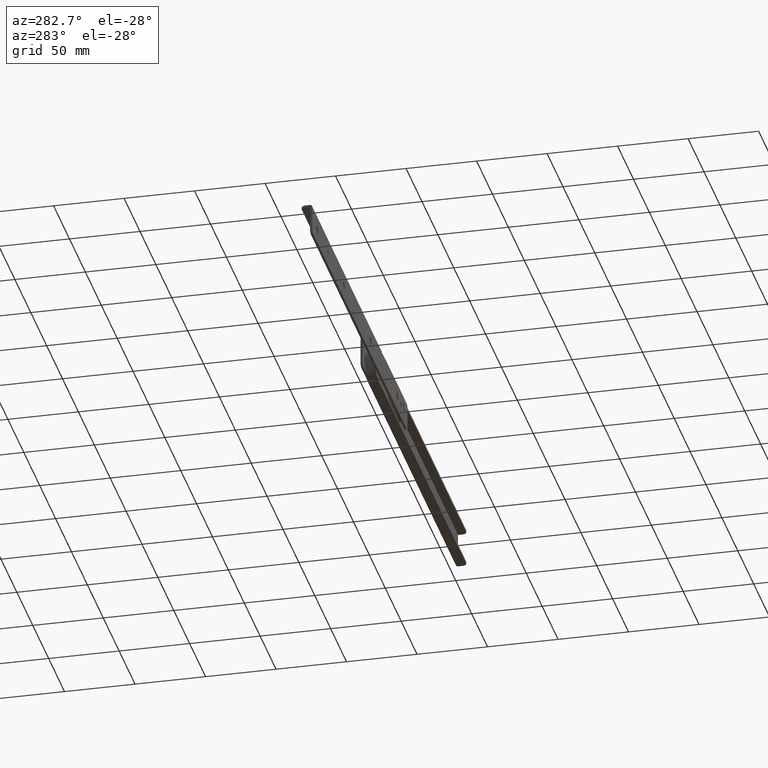
[diagram: clean part render]
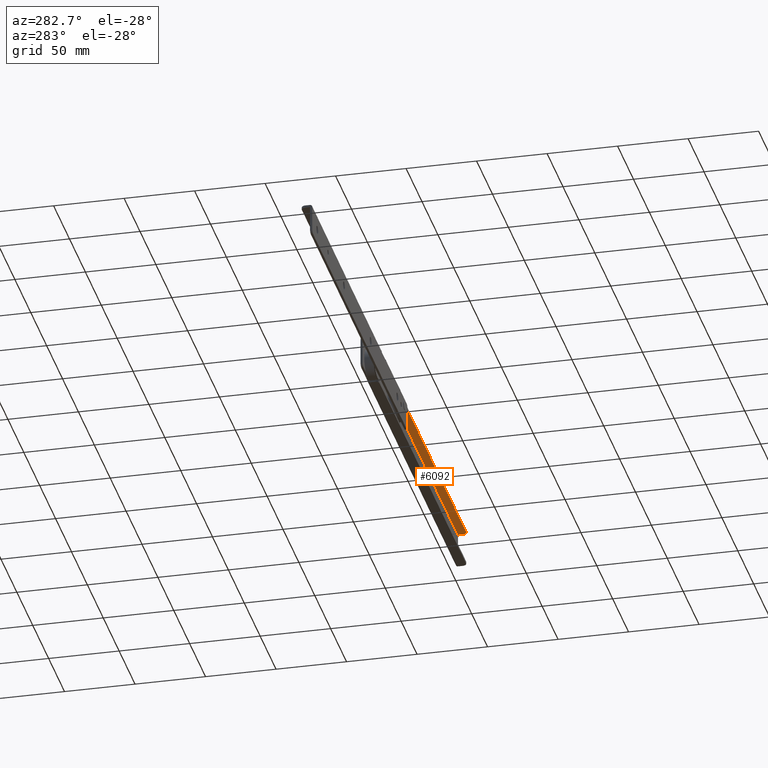
[diagram: same view with one face highlighted and labeled with its STEP entity id]
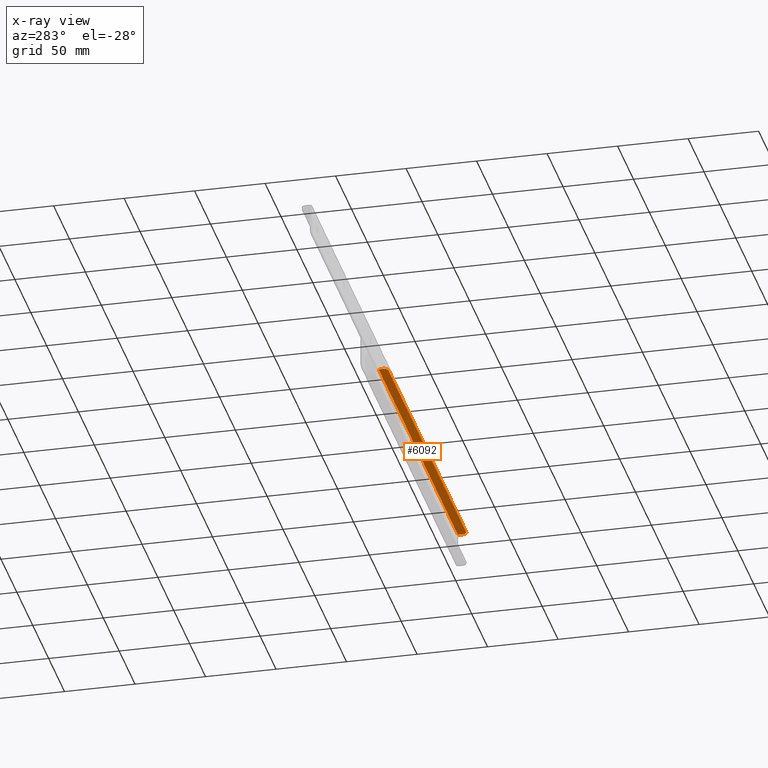
[diagram: x-ray of the same camera — body ghosted, the highlighted face saturated]
A machine part, auxiliary view. The second image highlights one B-rep face of the part: STEP entity #6092.
The next image is the same camera in x-ray: the body ghosted, the highlighted face saturated — about 1% of this face is hidden behind the body in this view.
In plain terms, the highlighted face is a freeform B-spline surface patch.
Its self-contained STEP definition (entity closure, byte-faithful):
#5284=CARTESIAN_POINT('',(50.0,-5.0,4.400000000000205));
#5285=VERTEX_POINT('',#5284);
#5291=CARTESIAN_POINT('',(53.0,-8.0,4.400000000000205));
#5292=VERTEX_POINT('',#5291);
#5293=CARTESIAN_POINT('',(53.0,-8.0,4.400000000000205));
#5294=CARTESIAN_POINT('',(49.999999999999986,-8.0,4.400000000000205));
#5295=CARTESIAN_POINT('',(49.999999999999993,-5.0,4.400000000000205));
#5303=(BOUNDED_CURVE()B_SPLINE_CURVE(2,(#5293,#5294,#5295),.UNSPECIFIED.,.F.,.U.)CURVE()GEOMETRIC_REPRESENTATION_ITEM()QUASI_UNIFORM_CURVE()RATIONAL_B_SPLINE_CURVE((1.0,0.707106781186548,1.0))REPRESENTATION_ITEM(''));
#5304=EDGE_CURVE('',#5292,#5285,#5303,.T.);
#5467=CARTESIAN_POINT('',(297.0,-8.0,4.400000000000205));
#5468=VERTEX_POINT('',#5467);
#5474=CARTESIAN_POINT('',(300.0,-5.0,4.400000000000205));
#5475=VERTEX_POINT('',#5474);
#5476=CARTESIAN_POINT('',(300.0,-5.0,4.400000000000205));
#5477=CARTESIAN_POINT('',(300.000000000000060,-8.0,4.400000000000205));
#5478=CARTESIAN_POINT('',(297.0,-8.0,4.400000000000205));
#5486=(BOUNDED_CURVE()B_SPLINE_CURVE(2,(#5476,#5477,#5478),.UNSPECIFIED.,.F.,.U.)CURVE()GEOMETRIC_REPRESENTATION_ITEM()QUASI_UNIFORM_CURVE()RATIONAL_B_SPLINE_CURVE((1.0,0.707106781186548,1.0))REPRESENTATION_ITEM(''));
#5487=EDGE_CURVE('',#5475,#5468,#5486,.T.);
#5634=CARTESIAN_POINT('',(50.0,-1.599999999999935,4.400000000000205));
#5635=VERTEX_POINT('',#5634);
#5654=CARTESIAN_POINT('',(50.0,-1.599999999999935,4.400000000000205));
#5655=CARTESIAN_POINT('',(50.0,-5.0,4.400000000000205));
#5656=QUASI_UNIFORM_CURVE('',1,(#5654,#5655),.UNSPECIFIED.,.F.,.U.);
#5657=EDGE_CURVE('',#5635,#5285,#5656,.T.);
#5780=CARTESIAN_POINT('',(300.0,-1.599999999999910,4.400000000000205));
#5781=VERTEX_POINT('',#5780);
#5782=CARTESIAN_POINT('',(300.0,-5.0,4.400000000000205));
#5783=CARTESIAN_POINT('',(300.0,-1.599999999999910,4.400000000000205));
#5784=QUASI_UNIFORM_CURVE('',1,(#5782,#5783),.UNSPECIFIED.,.F.,.U.);
#5785=EDGE_CURVE('',#5475,#5781,#5784,.T.);
#6023=CARTESIAN_POINT('',(300.0,-1.599999999999910,4.400000000000205));
#6024=CARTESIAN_POINT('',(50.0,-1.599999999999935,4.400000000000205));
#6025=QUASI_UNIFORM_CURVE('',1,(#6023,#6024),.UNSPECIFIED.,.F.,.U.);
#6026=EDGE_CURVE('',#5781,#5635,#6025,.T.);
#6075=CARTESIAN_POINT('',(37.512500484548497,-1.280320012404347,4.400000000000205));
#6076=CARTESIAN_POINT('',(37.512500484548497,-8.319680159256938,4.400000000000205));
#6077=CARTESIAN_POINT('',(312.487506220974130,-1.280320012404347,4.400000000000205));
#6078=CARTESIAN_POINT('',(312.487506220974130,-8.319680159256938,4.400000000000205));
#6079=B_SPLINE_SURFACE_WITH_KNOTS('',1,1,((#6075,#6077),(#6076,#6078)),.UNSPECIFIED.,.F.,.F.,.U.,(2,2),(2,2),(0.0,7.039360146852592),(0.0,274.975005736425490),.UNSPECIFIED.);
#6080=ORIENTED_EDGE('',*,*,#5785,.F.);
#6081=ORIENTED_EDGE('',*,*,#5487,.T.);
#6082=CARTESIAN_POINT('',(297.0,-8.0,4.400000000000205));
#6083=CARTESIAN_POINT('',(53.0,-8.0,4.400000000000205));
#6084=QUASI_UNIFORM_CURVE('',1,(#6082,#6083),.UNSPECIFIED.,.F.,.U.);
#6085=EDGE_CURVE('',#5468,#5292,#6084,.T.);
#6086=ORIENTED_EDGE('',*,*,#6085,.T.);
#6087=ORIENTED_EDGE('',*,*,#5304,.T.);
#6088=ORIENTED_EDGE('',*,*,#5657,.F.);
#6089=ORIENTED_EDGE('',*,*,#6026,.F.);
#6090=EDGE_LOOP('',(#6080,#6081,#6086,#6087,#6088,#6089));
#6091=FACE_OUTER_BOUND('',#6090,.T.);
#6092=ADVANCED_FACE('',(#6091),#6079,.F.);